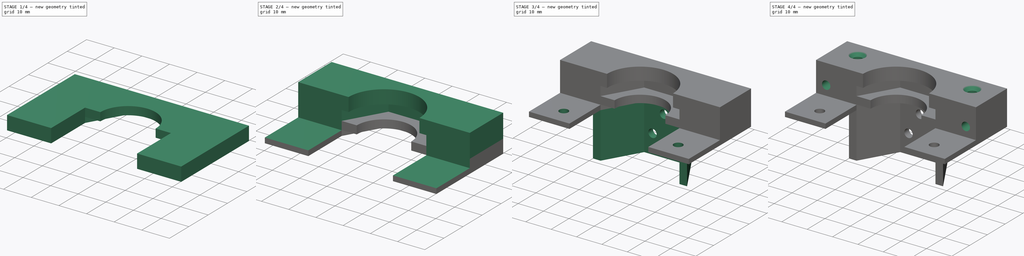
[diagram: build sequence overview — one tinted view per stage of 4, left to right]
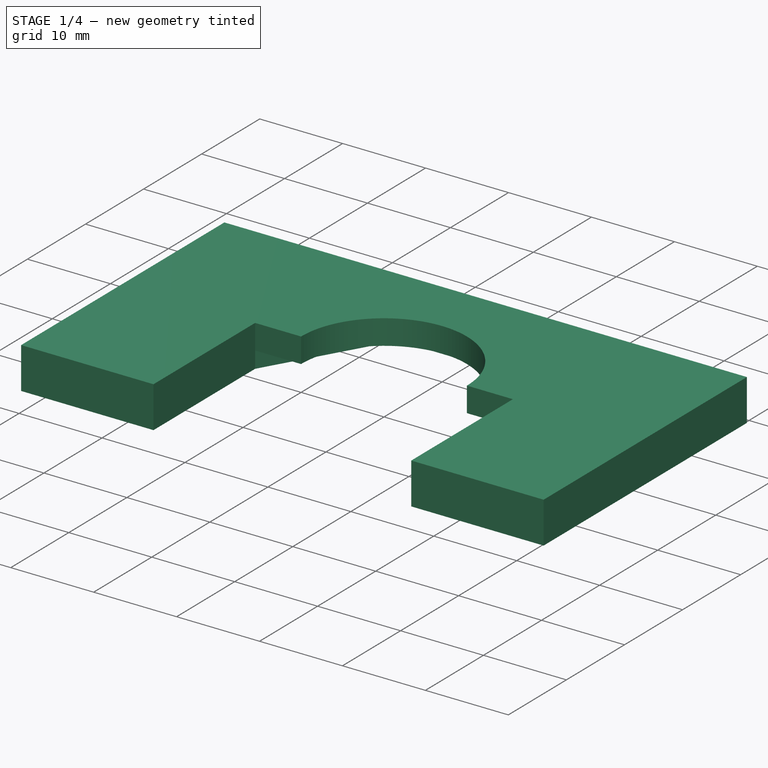
[diagram: stage 1 of 4 — iso view after this stage's code; geometry added in this stage tinted green]
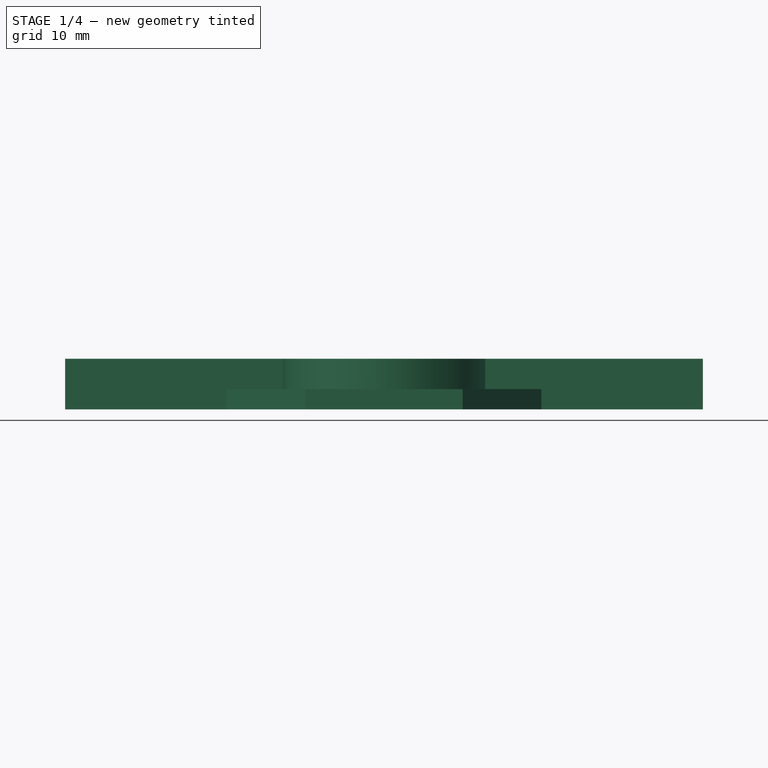
[diagram: stage 1 of 4 — front view after this stage's code; geometry added in this stage tinted green]
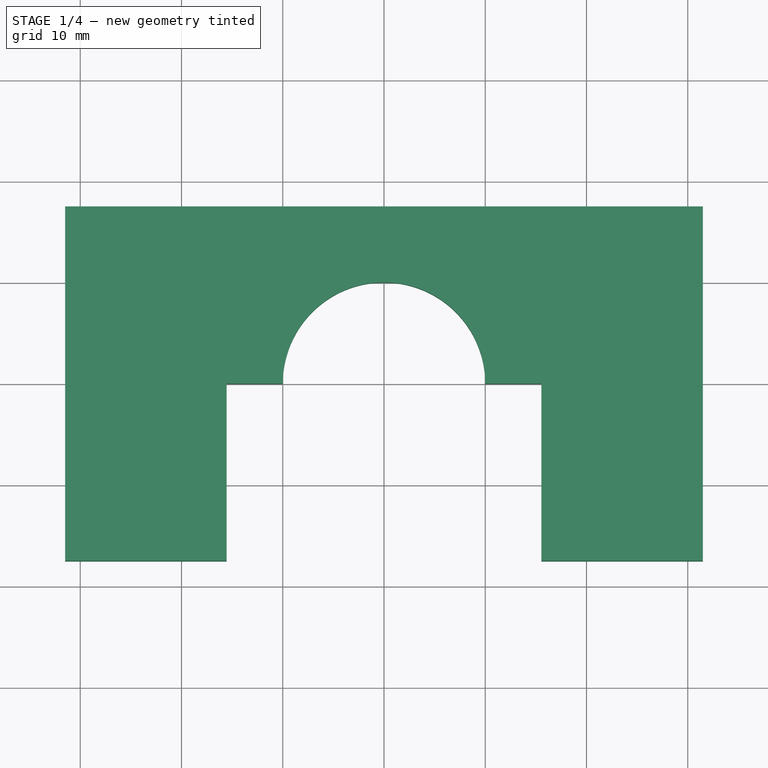
[diagram: stage 1 of 4 — top view after this stage's code; geometry added in this stage tinted green]
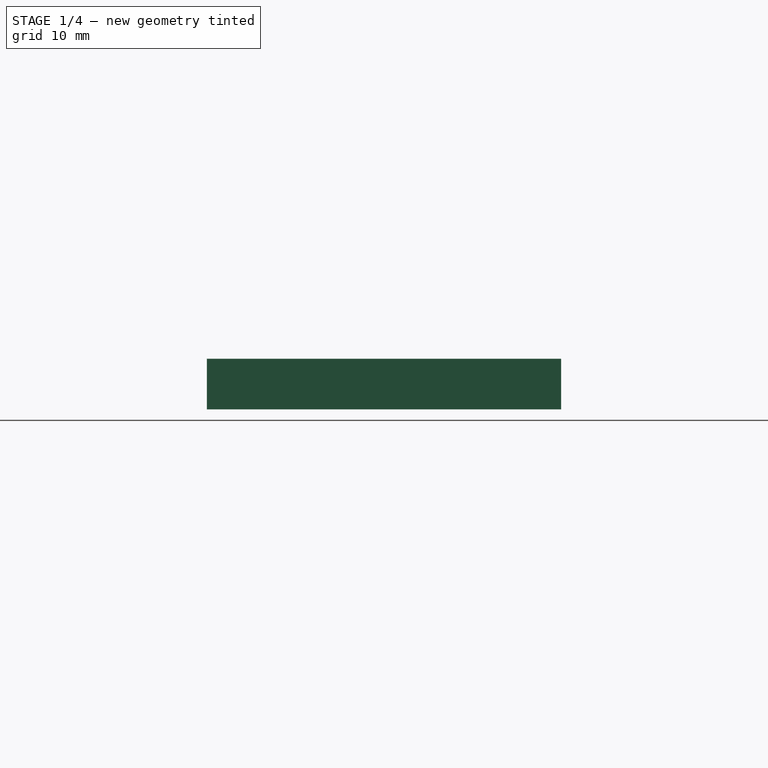
[diagram: stage 1 of 4 — right view after this stage's code; geometry added in this stage tinted green]
FCSTD DOCUMENT  (FreeCAD 0.17R12955 (Git))
Label: TC-H01-Holder
License: All rights reserved
LicenseURL: http://en.wikipedia.org/wiki/All_rights_reserved
objects: Sketcher::SketchObject×10, PartDesign::Pad×5, PartDesign::Hole×3, PartDesign::Pocket×2, PartDesign::Body×1
note: 31 computed .brp shape members not serialized (recipe doc carries the construction recipe); baked Part::Feature solids carry a one-line shape summary decoded from their .brp

FEATURE [Sketcher::SketchObject] Sketch
  MapMode = 5
  Support = -> [XY_Plane]
  sketch-geometry (11):
    g0: LineSegment StartX=-31.5 StartY=17.5 StartZ=0 EndX=31.5 EndY=17.5 EndZ=0
    g1: LineSegment StartX=31.5 StartY=17.5 StartZ=0 EndX=31.5 EndY=-17.5 EndZ=0
    g2: LineSegment StartX=31.5 StartY=-17.5 StartZ=0 EndX=15.54 EndY=-17.5 EndZ=0
    g3: LineSegment StartX=-31.5 StartY=-17.5 StartZ=0 EndX=-31.5 EndY=17.5 EndZ=0
    g4: LineSegment StartX=15.54 StartY=2.84971e-05 StartZ=0 EndX=7.77 EndY=13.458 EndZ=0
    g5: LineSegment StartX=7.77 StartY=13.458 StartZ=0 EndX=-7.77 EndY=13.458 EndZ=0
    g6: LineSegment StartX=-7.77 StartY=13.458 StartZ=0 EndX=-15.54 EndY=0 EndZ=0
    g7: Circle [constr] CenterX=0 CenterY=0 CenterZ=0 NormalX=0 NormalY=0 NormalZ=1 AngleXU=0 Radius=15.54
    g8: LineSegment StartX=-15.54 StartY=0 StartZ=0 EndX=-15.54 EndY=-17.5 EndZ=0
    g9: LineSegment StartX=15.54 StartY=2.84971e-05 StartZ=0 EndX=15.54 EndY=-17.5 EndZ=0
    g10: LineSegment StartX=-15.54 StartY=-17.5 StartZ=0 EndX=-31.5 EndY=-17.5 EndZ=0
  constraints (31):
    c: Coincident(g0,g1)
    c: Coincident(g1,g2)
    c: Coincident(g10,g3)
    c: Coincident(g3,g0)
    c: Horizontal(g0)
    c: Horizontal(g2)
    c: Vertical(g1)
    c: Vertical(g3)
    c: DistanceX(g0,g0) = 63
    c: DistanceY(g1,g0) = 35
    c: Symmetric(g1,g10,g-2)
    c: Symmetric(g0,g10,g-1)
    c: Coincident(g4,g5)
    c: Coincident(g5,g6)
    c: PointOnObject(g4,g7)
    c: PointOnObject(g4,g7)
    c: PointOnObject(g5,g7)
    c: PointOnObject(g6,g7)
    c: Radius(g7) = 15.54
    c: Coincident(g7,g-1)
    c: Parallel(g5,g-1)
    c: Coincident(g8,g6)
    c: Vertical(g8)
    c: Vertical(g9)
    c: Tangent(g9,g7)
    c: Coincident(g2,g9)
    c: Coincident(g10,g8)
    c: Tangent(g2,g10)
    c: DistanceX(g5,g4) = 15.54
    c: PointOnObject(g6,g-1)
    c: Coincident(g4,g9)
FEATURE [PartDesign::Pad] Pad
  Length = 2
  Length2 = 100
  Profile = -> Sketch
  Type = 0
FEATURE [Sketcher::SketchObject] Sketch001
  ExternalGeometry = -> [Pad]
  MapMode = 5
  Placement = pos=(0,0,2) rot=(0,0,1;0rad)
  Support = -> [Pad]
  sketch-geometry (10):
    g0: ArcOfCircle CenterX=0 CenterY=0 CenterZ=0 NormalX=0 NormalY=0 NormalZ=1 AngleXU=0 Radius=10 StartAngle=2.84971e-06 EndAngle=3.14159
    g1: LineSegment StartX=-31.5 StartY=17.5 StartZ=0 EndX=31.5 EndY=17.5 EndZ=0
    g2: LineSegment StartX=31.5 StartY=17.5 StartZ=0 EndX=31.5 EndY=-17.5 EndZ=0
    g3: LineSegment StartX=31.5 StartY=-17.5 StartZ=0 EndX=15.54 EndY=-17.5 EndZ=0
    g4: LineSegment StartX=-31.5 StartY=-17.5 StartZ=0 EndX=-31.5 EndY=17.5 EndZ=0
    g5: LineSegment StartX=-15.54 StartY=0 StartZ=0 EndX=-10 EndY=0 EndZ=0
    g6: LineSegment StartX=10 StartY=2.84971e-05 StartZ=0 EndX=15.54 EndY=2.84971e-05 EndZ=0
    g7: LineSegment StartX=-15.54 StartY=-17.5 StartZ=0 EndX=-15.54 EndY=0 EndZ=0
    g8: LineSegment StartX=15.54 StartY=-17.5 StartZ=0 EndX=15.54 EndY=2.84971e-05 EndZ=0
    g9: LineSegment StartX=-15.54 StartY=-17.5 StartZ=0 EndX=-31.5 EndY=-17.5 EndZ=0
  constraints (26):
    c: Radius(g0) = 10
    c: Coincident(g0,g-1)
    c: Coincident(g1,g2)
    c: Coincident(g2,g3)
    c: Coincident(g9,g4)
    c: Coincident(g4,g1)
    c: Horizontal(g1)
    c: Horizontal(g3)
    c: Vertical(g2)
    c: Vertical(g4)
    c: Coincident(g2,g-4)
    c: Coincident(g1,g-3)
    c: Coincident(g5,g-6)
    c: Horizontal(g5)
    c: Coincident(g6,g-5)
    c: Horizontal(g6)
    c: Coincident(g7,g5)
    c: Vertical(g7)
    c: Coincident(g8,g6)
    c: Vertical(g8)
    c: PointOnObject(g3,g8)
    c: PointOnObject(g9,g7)
    c: Tangent(g3,g9)
    c: Coincident(g0,g6)
    c: Coincident(g0,g5)
    c: Coincident(g7,g9)
FEATURE [PartDesign::Pad] Pad001
  BaseFeature = -> Pad
  Length = 3
  Length2 = 100
  Profile = -> Sketch001
  Type = 0
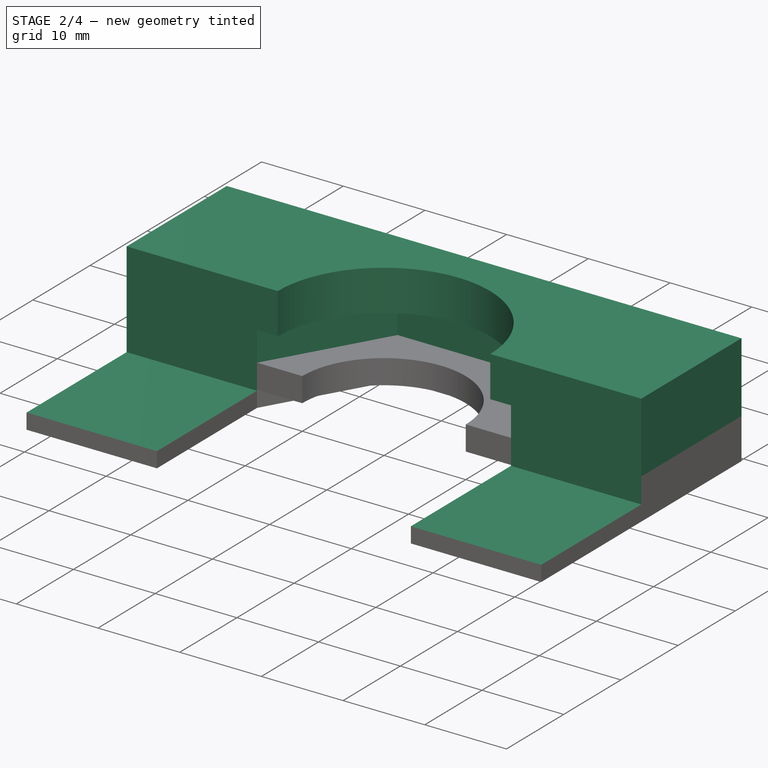
[diagram: stage 2 of 4 — iso view after this stage's code; geometry added in this stage tinted green]
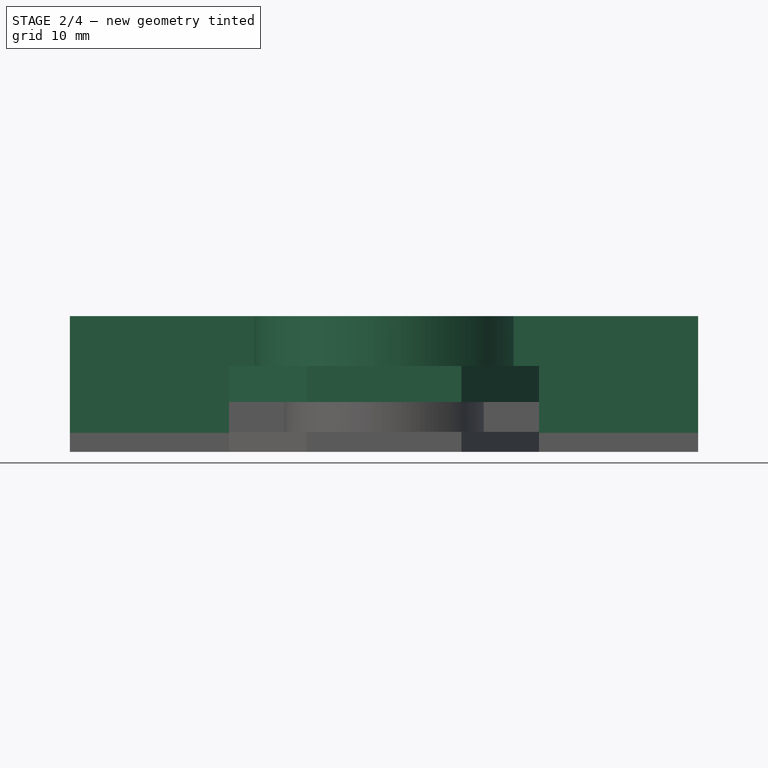
[diagram: stage 2 of 4 — front view after this stage's code; geometry added in this stage tinted green]
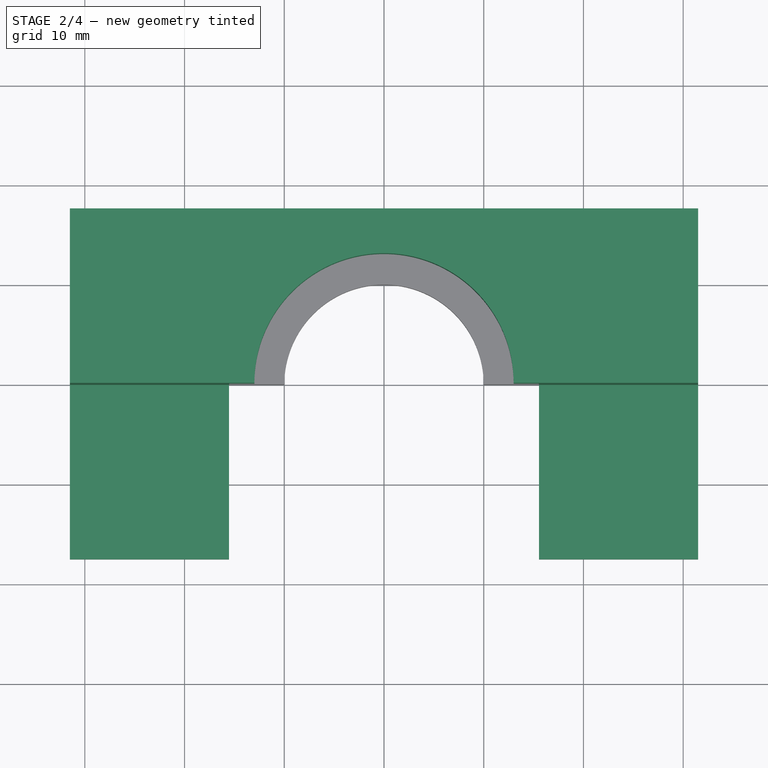
[diagram: stage 2 of 4 — top view after this stage's code; geometry added in this stage tinted green]
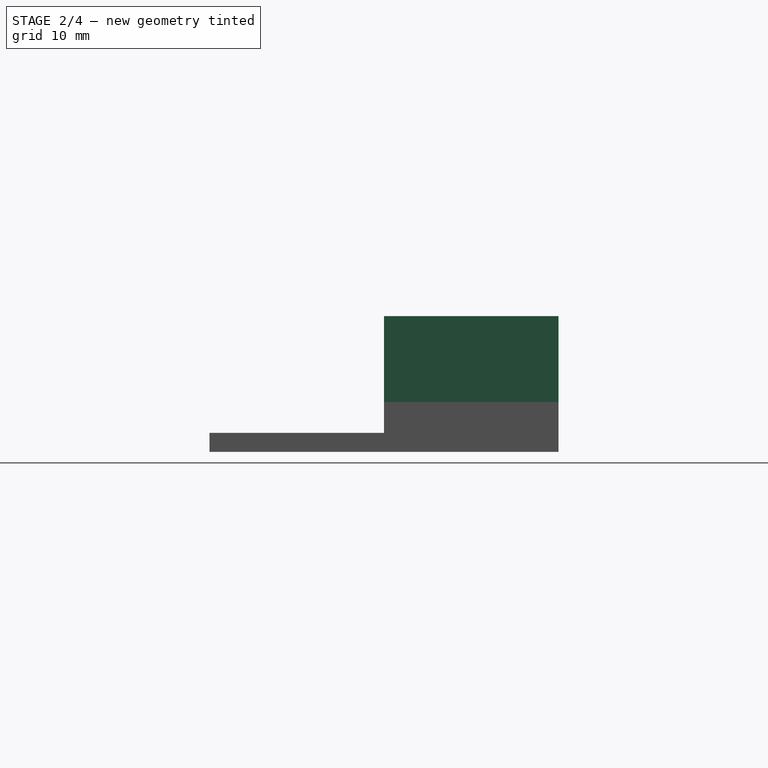
[diagram: stage 2 of 4 — right view after this stage's code; geometry added in this stage tinted green]
FEATURE [Sketcher::SketchObject] Sketch002
  ExternalGeometry = -> [Pad001]
  MapMode = 5
  Placement = pos=(0,0,5) rot=(0,0,1;0rad)
  Support = -> [Pad001]
  sketch-geometry (11):
    g0: LineSegment StartX=15.54 StartY=0 StartZ=0 EndX=7.77 EndY=13.458 EndZ=0
    g1: LineSegment StartX=7.77 StartY=13.458 StartZ=0 EndX=-7.77 EndY=13.458 EndZ=0
    g2: LineSegment StartX=-7.77 StartY=13.458 StartZ=0 EndX=-15.54 EndY=0 EndZ=0
    g3: Circle [constr] CenterX=0 CenterY=0 CenterZ=0 NormalX=0 NormalY=0 NormalZ=1 AngleXU=0 Radius=15.54
    g4: LineSegment StartX=-31.5 StartY=17.5 StartZ=0 EndX=31.5 EndY=17.5 EndZ=0
    g5: LineSegment StartX=31.5 StartY=17.5 StartZ=0 EndX=31.5 EndY=-17.5 EndZ=0
    g6: LineSegment StartX=31.5 StartY=-17.5 StartZ=0 EndX=15.54 EndY=-17.5 EndZ=0
    g7: LineSegment StartX=-31.5 StartY=-17.5 StartZ=0 EndX=-31.5 EndY=17.5 EndZ=0
    g8: LineSegment StartX=-15.54 StartY=0 StartZ=0 EndX=-15.54 EndY=-17.5 EndZ=0
    g9: LineSegment StartX=15.54 StartY=0 StartZ=0 EndX=15.54 EndY=-17.5 EndZ=0
    g10: LineSegment StartX=-15.54 StartY=-17.5 StartZ=0 EndX=-31.5 EndY=-17.5 EndZ=0
  constraints (29):
    c: Coincident(g0,g1)
    c: Coincident(g1,g2)
    c: PointOnObject(g0,g3)
    c: PointOnObject(g0,g3)
    c: PointOnObject(g1,g3)
    c: PointOnObject(g2,g3)
    c: Radius(g3) = 15.54
    c: Coincident(g3,g-1)
    c: Parallel(g1,g-1)
    c: Coincident(g4,g5)
    c: Coincident(g5,g6)
    c: Coincident(g10,g7)
    c: Coincident(g7,g4)
    c: Horizontal(g4)
    c: Horizontal(g6)
    c: Vertical(g5)
    c: Vertical(g7)
    c: Coincident(g4,g-3)
    c: Coincident(g5,g-6)
    c: PointOnObject(g8,g-1)
    c: Coincident(g8,g-4)
    c: PointOnObject(g9,g-1)
    c: Coincident(g9,g-5)
    c: Coincident(g8,g2)
    c: PointOnObject(g6,g9)
    c: PointOnObject(g10,g8)
    c: Tangent(g6,g10)
    c: DistanceX(g1,g0) = 15.54
    c: Coincident(g9,g0)
FEATURE [PartDesign::Pad] Pad002
  BaseFeature = -> Pad001
  Length = 3.6
  Length2 = 100
  Profile = -> Sketch002
  Type = 0
FEATURE [Sketcher::SketchObject] Sketch003
  ExternalGeometry = -> [Pad002]
  MapMode = 5
  Placement = pos=(0,0,8.6) rot=(0,0,1;0rad)
  Support = -> [Pad002]
  sketch-geometry (10):
    g0: LineSegment StartX=-31.5 StartY=17.5 StartZ=0 EndX=31.5 EndY=17.5 EndZ=0
    g1: LineSegment StartX=31.5 StartY=17.5 StartZ=0 EndX=31.5 EndY=-17.5 EndZ=0
    g2: LineSegment StartX=31.5 StartY=-17.5 StartZ=0 EndX=15.54 EndY=-17.5 EndZ=0
    g3: LineSegment StartX=-31.5 StartY=-17.5 StartZ=0 EndX=-31.5 EndY=17.5 EndZ=0
    g4: ArcOfCircle CenterX=0 CenterY=0 CenterZ=0 NormalX=0 NormalY=0 NormalZ=1 AngleXU=0 Radius=13 StartAngle=0 EndAngle=3.14159
    g5: LineSegment StartX=-15.54 StartY=-3e-12 StartZ=0 EndX=-13 EndY=-3e-12 EndZ=0
    g6: LineSegment StartX=13 StartY=0 StartZ=0 EndX=15.54 EndY=0 EndZ=0
    g7: LineSegment StartX=-15.54 StartY=-3e-12 StartZ=0 EndX=-15.54 EndY=-17.5 EndZ=0
    g8: LineSegment StartX=15.54 StartY=0 StartZ=0 EndX=15.54 EndY=-17.5 EndZ=0
    g9: LineSegment StartX=-15.54 StartY=-17.5 StartZ=0 EndX=-31.5 EndY=-17.5 EndZ=0
  constraints (25):
    c: Coincident(g0,g1)
    c: Coincident(g1,g2)
    c: Coincident(g9,g3)
    c: Coincident(g3,g0)
    c: Horizontal(g0)
    c: Horizontal(g2)
    c: Vertical(g1)
    c: Vertical(g3)
    c: Coincident(g1,g-4)
    c: Coincident(g0,g-3)
    c: Radius(g4) = 13
    c: Coincident(g4,g-1)
    c: Coincident(g5,g-6)
    c: Horizontal(g5)
    c: Coincident(g6,g-5)
    c: Horizontal(g6)
    c: Coincident(g7,g5)
    c: Coincident(g7,g-6)
    c: Coincident(g8,g6)
    c: Coincident(g8,g-5)
    c: PointOnObject(g2,g8)
    c: PointOnObject(g9,g7)
    c: Tangent(g2,g9)
    c: Coincident(g4,g6)
    c: Coincident(g4,g5)
FEATURE [PartDesign::Pad] Pad003
  BaseFeature = -> Pad002
  Length = 5
  Length2 = 100
  Profile = -> Sketch003
  Type = 0
FEATURE [Sketcher::SketchObject] Sketch004
  ExternalGeometry = -> [Pad003]
  MapMode = 5
  Placement = pos=(0,0,13.6) rot=(0,0,1;0rad)
  Support = -> [Pad003]
  sketch-geometry (4):
    g0: LineSegment StartX=-31.5 StartY=0 StartZ=0 EndX=31.5 EndY=0 EndZ=0
    g1: LineSegment StartX=31.5 StartY=0 StartZ=0 EndX=31.5 EndY=-17.5 EndZ=0
    g2: LineSegment StartX=31.5 StartY=-17.5 StartZ=0 EndX=-31.5 EndY=-17.5 EndZ=0
    g3: LineSegment StartX=-31.5 StartY=-17.5 StartZ=0 EndX=-31.5 EndY=0 EndZ=0
  constraints (11):
    c: Coincident(g0,g1)
    c: Coincident(g1,g2)
    c: Coincident(g2,g3)
    c: Coincident(g3,g0)
    c: Horizontal(g0)
    c: Horizontal(g2)
    c: Vertical(g1)
    c: Vertical(g3)
    c: Coincident(g1,g-4)
    c: Coincident(g2,g-3)
    c: PointOnObject(g0,g-1)
FEATURE [PartDesign::Pocket] Pocket
  BaseFeature = -> Pad003
  Length = 11.7
  Profile = -> Sketch004
  Type = 0
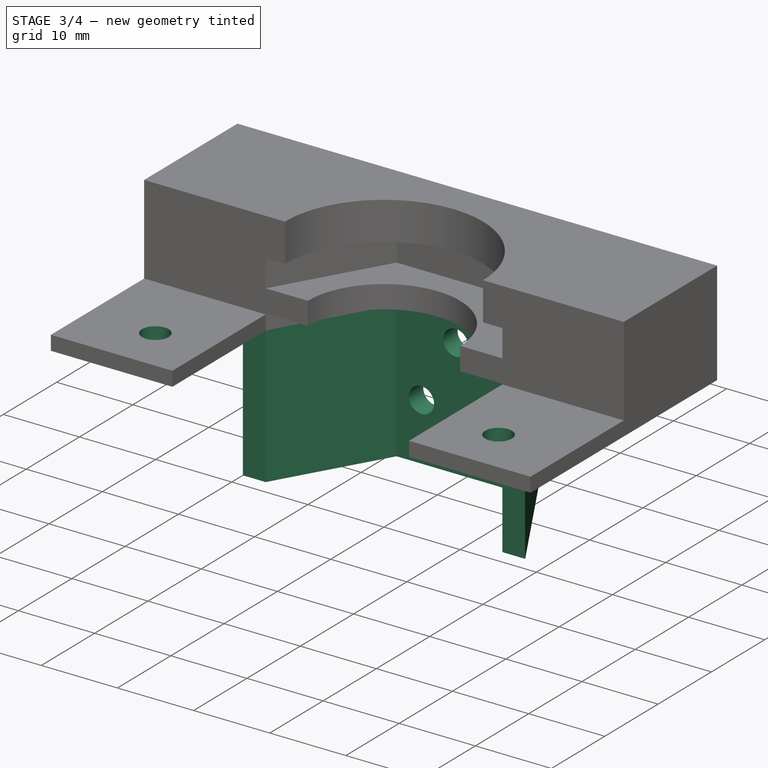
[diagram: stage 3 of 4 — iso view after this stage's code; geometry added in this stage tinted green]
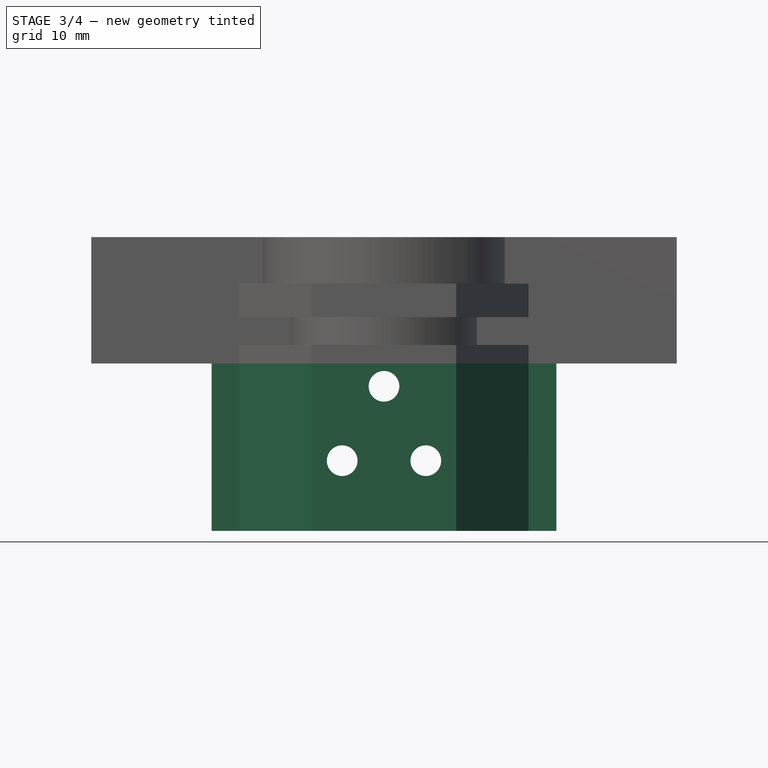
[diagram: stage 3 of 4 — front view after this stage's code; geometry added in this stage tinted green]
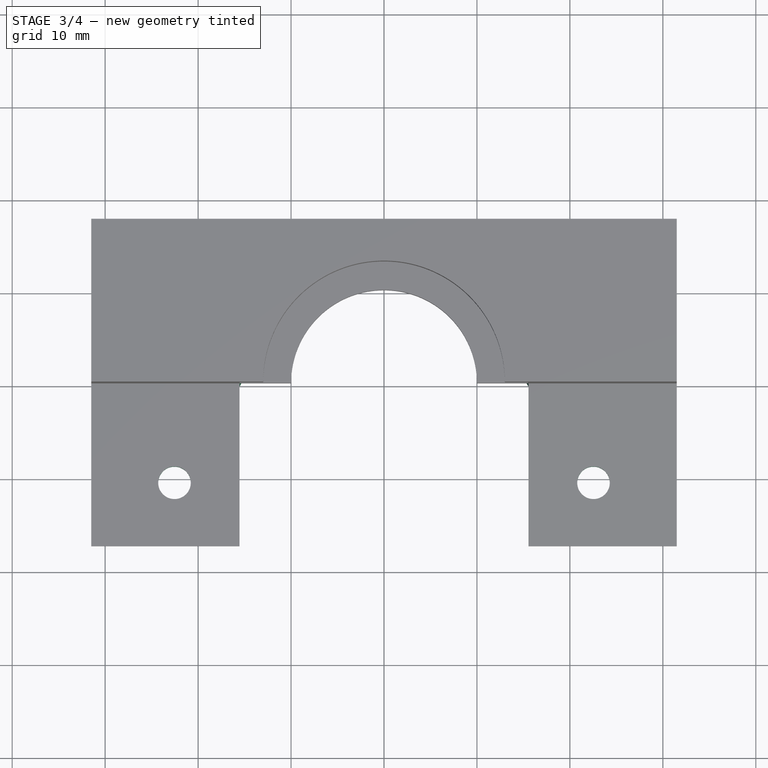
[diagram: stage 3 of 4 — top view after this stage's code; geometry added in this stage tinted green]
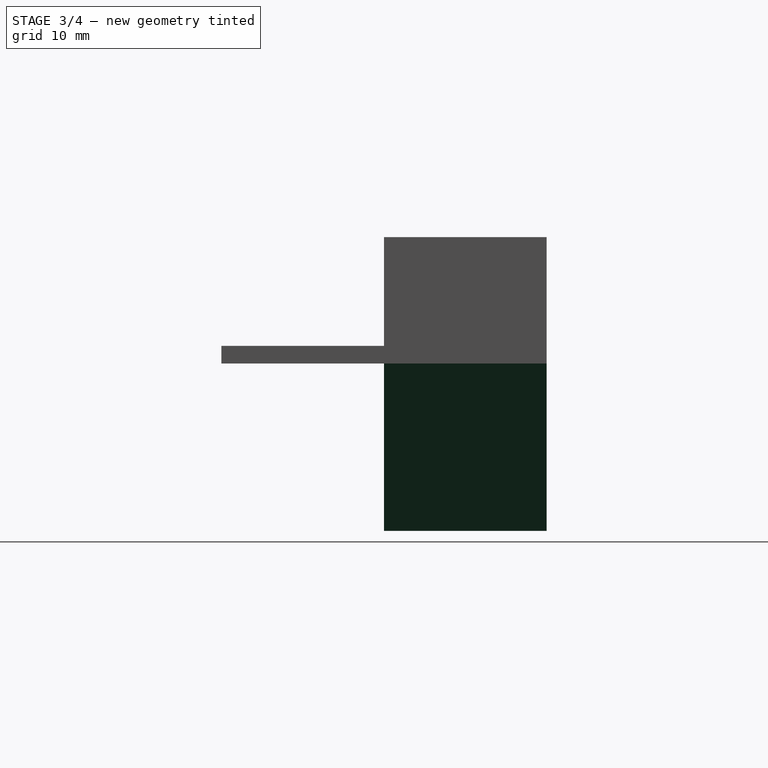
[diagram: stage 3 of 4 — right view after this stage's code; geometry added in this stage tinted green]
FEATURE [Sketcher::SketchObject] Sketch008
  ExternalGeometry = -> [Pocket]
  MapMode = 5
  Placement = pos=(0,0,0) rot=(1,0,0;3.14159rad)
  Support = -> [Pocket]
  sketch-geometry (8):
    g0: LineSegment StartX=-7.77 StartY=-13.458 StartZ=0 EndX=7.77 EndY=-13.458 EndZ=0
    g1: LineSegment StartX=8.23 StartY=-17.5 StartZ=0 EndX=-7.77 EndY=-17.5 EndZ=0
    g2: LineSegment StartX=-15.54 StartY=0 StartZ=0 EndX=-18.54 EndY=0 EndZ=0
    g3: LineSegment StartX=-18.54 StartY=0 StartZ=0 EndX=-7.77 EndY=-17.5 EndZ=0
    g4: LineSegment StartX=15.54 StartY=-2.84971e-05 StartZ=0 EndX=18.54 EndY=0 EndZ=0
    g5: LineSegment StartX=18.54 StartY=0 StartZ=0 EndX=8.23 EndY=-17.5 EndZ=0
    g6: LineSegment StartX=-15.54 StartY=0 StartZ=0 EndX=-7.77 EndY=-13.458 EndZ=0
    g7: LineSegment StartX=7.77 StartY=-13.458 StartZ=0 EndX=15.54 EndY=-2.84971e-05 EndZ=0
  constraints (20):
    c: Coincident(g2,g3)
    c: Coincident(g2,g6)
    c: Coincident(g1,g3)
    c: Coincident(g0,g6)
    c: Coincident(g0,g7)
    c: Coincident(g1,g5)
    c: Coincident(g4,g7)
    c: Coincident(g4,g5)
    c: PointOnObject(g1,g-3)
    c: DistanceX(g1,g1) = 16
    c: Coincident(g2,g-4)
    c: Coincident(g-5,g4)
    c: DistanceX(g2,g2) = 3
    c: DistanceX(g4,g4) = 3
    c: DistanceY(g-3,g2) = 17.5
    c: DistanceY(g-3,g4) = 17.5
    c: Coincident(g0,g-6)
    c: Coincident(g0,g-7)
    c: DistanceX(g1,g0) = 0
    c: PointOnObject(g1,g-3)
FEATURE [PartDesign::Pad] Pad004
  BaseFeature = -> Pocket
  Length = 18
  Length2 = 100
  Profile = -> Sketch008
  Type = 0
FEATURE [Sketcher::SketchObject] Sketch009
  MapMode = 5
  Placement = pos=(0,17.5,0) rot=(0,0.707107,0.707107;3.14159rad)
  Support = -> [Pad004]
  sketch-geometry (3):
    g0: Circle CenterX=0 CenterY=-2.45 CenterZ=0 NormalX=0 NormalY=0 NormalZ=1 AngleXU=0 Radius=2.1
    g1: Circle CenterX=-4.5 CenterY=-10.45 CenterZ=0 NormalX=0 NormalY=0 NormalZ=1 AngleXU=0 Radius=2.1
    g2: Circle CenterX=4.5 CenterY=-10.45 CenterZ=0 NormalX=0 NormalY=0 NormalZ=1 AngleXU=0 Radius=2.1
  constraints (8):
    c: Radius(g0) = 2.1
    c: PointOnObject(g0,g-2)
    c: Radius(g1) = 2.1
    c: Equal(g1,g2)
    c: DistanceX(g1,g2) = 9
    c: DistanceX(g-1,g2) = 4.5
    c: DistanceY(g2,g0) = 8
    c: DistanceY(g1,g0) = 8
FEATURE [PartDesign::Hole] Hole
  BaseFeature = -> Pad004
  Depth = 25
  DepthType = 0
  Diameter = 3.3
  DrillPoint = 1
  DrillPointAngle = 118
  HoleCutCountersinkAngle = 90
  HoleCutDepth = 0
  HoleCutDiameter = 6
  HoleCutType = 2
  ModelActualThread = false
  Profile = -> Sketch009
  Tapered = false
  TaperedAngle = 90
  ThreadAngle = 0
  ThreadClass = 0
  ThreadCutOffInner = 0
  ThreadCutOffOuter = 0
  ThreadDirection = 0
  ThreadFit = 0
  ThreadPitch = 0
  ThreadSize = 3
  ThreadType = 1
  Threaded = false
FEATURE [Sketcher::SketchObject] Sketch010
  ExternalGeometry = -> [Hole]
  MapMode = 5
  Placement = pos=(0,0,1.9) rot=(0,0,1;0rad)
  Support = -> [Hole]
  sketch-geometry (2):
    g0: Circle CenterX=-22.54 CenterY=-10.7 CenterZ=0 NormalX=0 NormalY=0 NormalZ=1 AngleXU=0 Radius=1.75
    g1: Circle CenterX=22.54 CenterY=-10.7 CenterZ=0 NormalX=0 NormalY=0 NormalZ=1 AngleXU=0 Radius=1.75
  constraints (6):
    c: DistanceY(g-3,g0) = 6.8
    c: DistanceY(g-4,g1) = 6.8
    c: DistanceX(g-5,g0) = 8.96
    c: DistanceX(g1,g-6) = 8.96
    c: Radius(g0) = 1.75
    c: Equal(g0,g1)
FEATURE [PartDesign::Pocket] Pocket001
  BaseFeature = -> Hole
  Length = 5
  Profile = -> Sketch010
  Type = 0
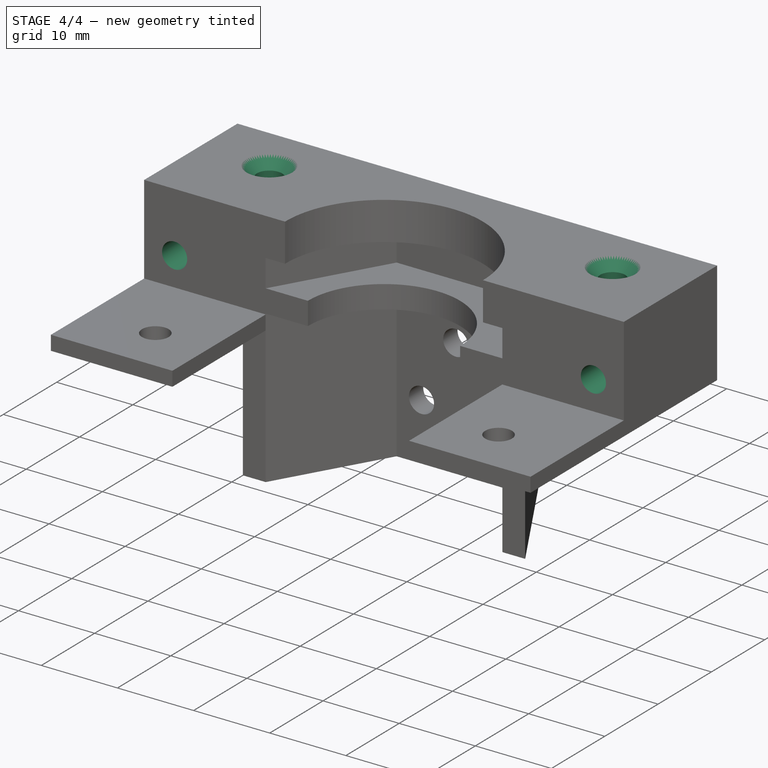
[diagram: stage 4 of 4 — iso view after this stage's code; geometry added in this stage tinted green]
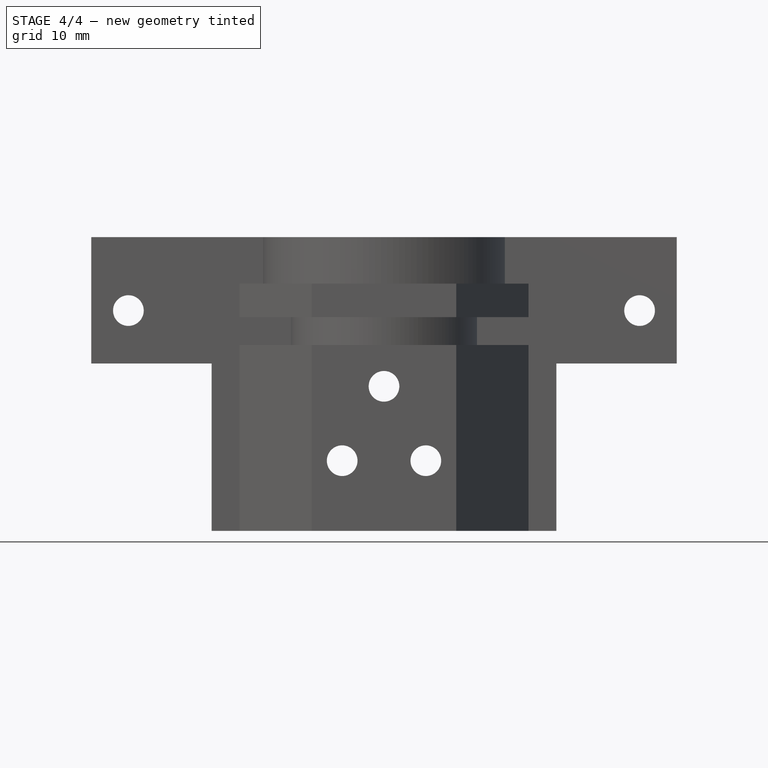
[diagram: stage 4 of 4 — front view after this stage's code; geometry added in this stage tinted green]
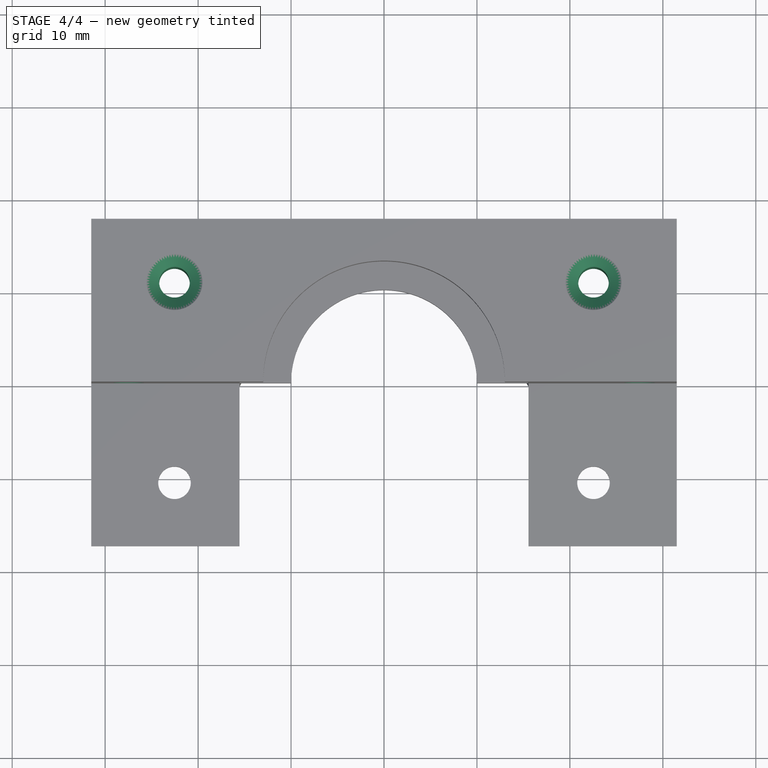
[diagram: stage 4 of 4 — top view after this stage's code; geometry added in this stage tinted green]
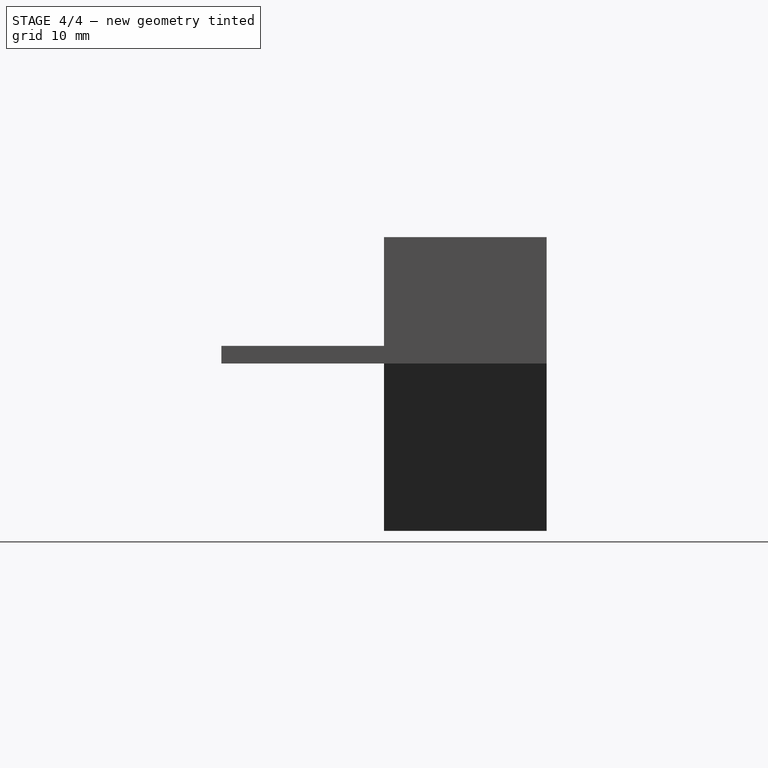
[diagram: stage 4 of 4 — right view after this stage's code; geometry added in this stage tinted green]
FEATURE [Sketcher::SketchObject] Sketch011
  ExternalGeometry = -> [Pocket001]
  MapMode = 5
  Placement = pos=(0,0,13.6) rot=(0,0,1;0rad)
  Support = -> [Pocket001]
  sketch-geometry (2):
    g0: Circle CenterX=-22.54 CenterY=10.7 CenterZ=0 NormalX=0 NormalY=0 NormalZ=1 AngleXU=0 Radius=1.75
    g1: Circle CenterX=22.54 CenterY=10.7 CenterZ=0 NormalX=0 NormalY=0 NormalZ=1 AngleXU=0 Radius=1.75
  constraints (6):
    c: DistanceX(g-3,g0) = 8.96
    c: DistanceY(g0,g-3) = 6.8
    c: DistanceX(g1,g-4) = 8.96
    c: DistanceY(g1,g-4) = 6.8
    c: Radius(g1) = 1.75
    c: Equal(g1,g0)
FEATURE [PartDesign::Hole] Hole001
  BaseFeature = -> Pocket001
  Depth = 25
  DepthType = 0
  Diameter = 3.3
  DrillPoint = 1
  DrillPointAngle = 118
  HoleCutCountersinkAngle = 90
  HoleCutDepth = 0
  HoleCutDiameter = 6
  HoleCutType = 2
  ModelActualThread = false
  Profile = -> Sketch011
  Tapered = false
  TaperedAngle = 90
  ThreadAngle = 0
  ThreadClass = 0
  ThreadCutOffInner = 0
  ThreadCutOffOuter = 0
  ThreadDirection = 0
  ThreadFit = 0
  ThreadPitch = 0
  ThreadSize = 3
  ThreadType = 1
  Threaded = false
FEATURE [Sketcher::SketchObject] Sketch012
  MapMode = 5
  Placement = pos=(0,17.5,0) rot=(0,0.707107,0.707107;3.14159rad)
  Support = -> [Hole001]
  sketch-geometry (2):
    g0: Circle CenterX=-27.5 CenterY=5.7 CenterZ=0 NormalX=0 NormalY=0 NormalZ=1 AngleXU=0 Radius=1.75
    g1: Circle CenterX=27.5 CenterY=5.7 CenterZ=0 NormalX=0 NormalY=0 NormalZ=1 AngleXU=0 Radius=1.75
  constraints (6):
    c: DistanceX(g0,g-1) = 27.5
    c: DistanceY(g-1,g0) = 5.7
    c: DistanceX(g-1,g1) = 27.5
    c: DistanceY(g-1,g1) = 5.7
    c: Radius(g0) = 1.75
    c: Equal(g0,g1)
FEATURE [PartDesign::Hole] Hole002
  BaseFeature = -> Hole001
  Depth = 25
  DepthType = 0
  Diameter = 3.3
  DrillPoint = 1
  DrillPointAngle = 118
  HoleCutCountersinkAngle = 90
  HoleCutDepth = 0
  HoleCutDiameter = 6
  HoleCutType = 2
  ModelActualThread = false
  Profile = -> Sketch012
  Tapered = false
  TaperedAngle = 90
  ThreadAngle = 0
  ThreadClass = 0
  ThreadCutOffInner = 0
  ThreadCutOffOuter = 0
  ThreadDirection = 0
  ThreadFit = 0
  ThreadPitch = 0
  ThreadSize = 3
  ThreadType = 1
  Threaded = false
FEATURE [PartDesign::Body] Body
  Group = -> [Sketch,Pad,Sketch001,Pad001,Sketch002,Pad002,Sketch003,Pad003,Sketch004,Pocket,Sketch008,Sketch009,Pad004,Hole,Sketch010,Pocket001,Sketch011,Hole001,Sketch012,Hole002]
  Origin = -> Origin
  Tip = -> Hole002
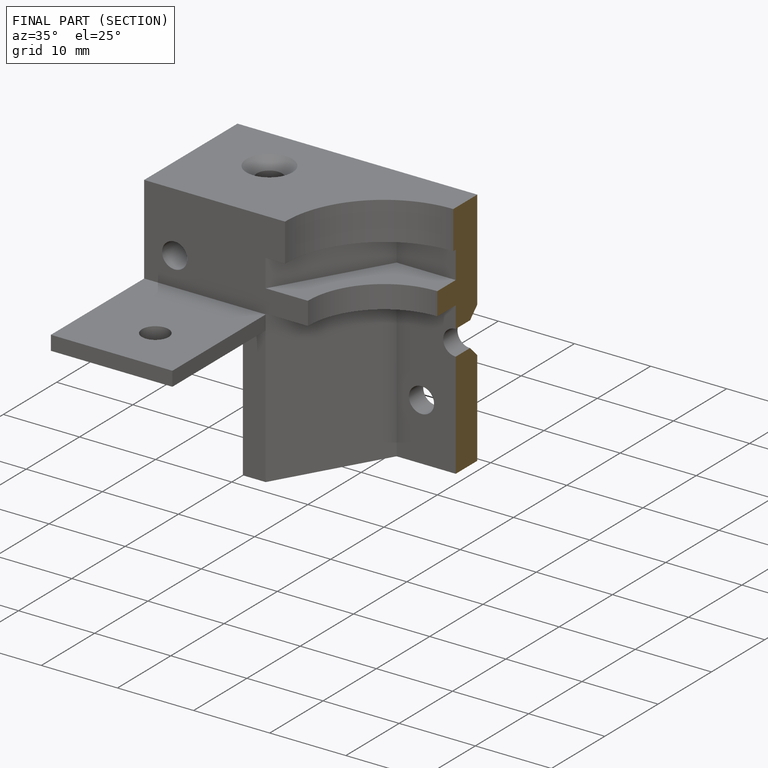
[diagram: finished part — half-section view (interior)]
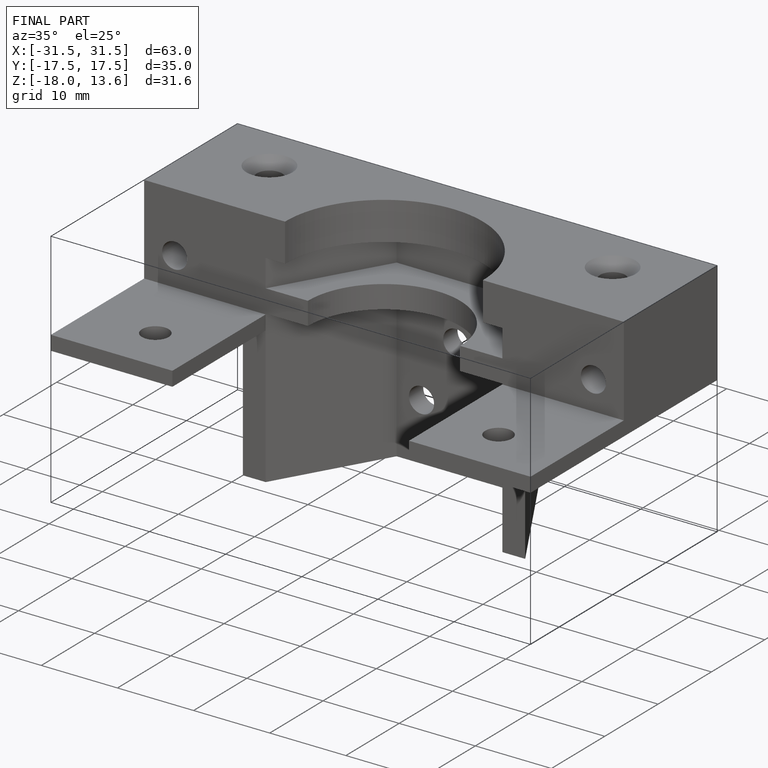
[diagram: finished part — iso view with bounding-box wireframe]
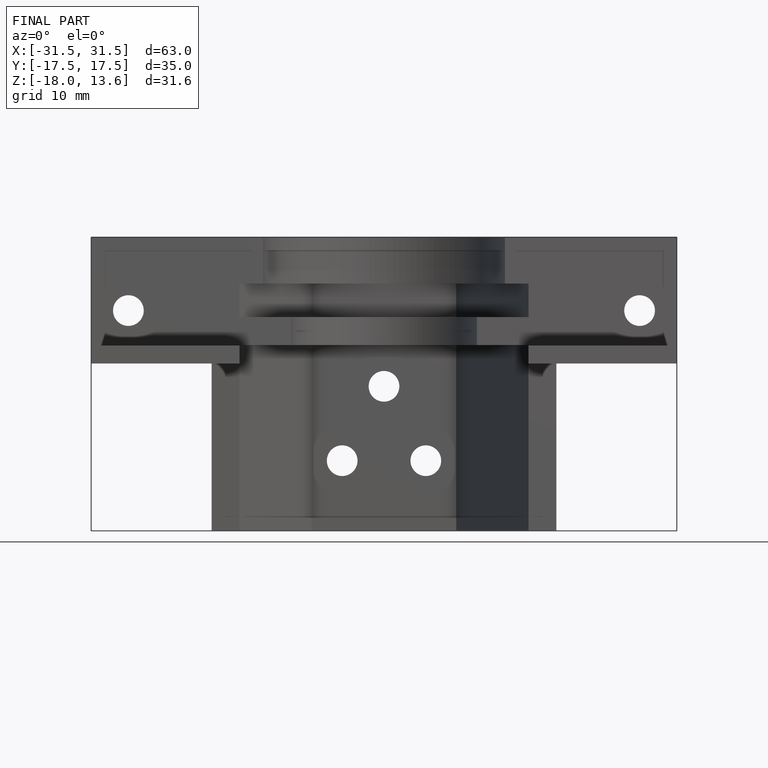
[diagram: finished part — front view with bounding-box wireframe]
